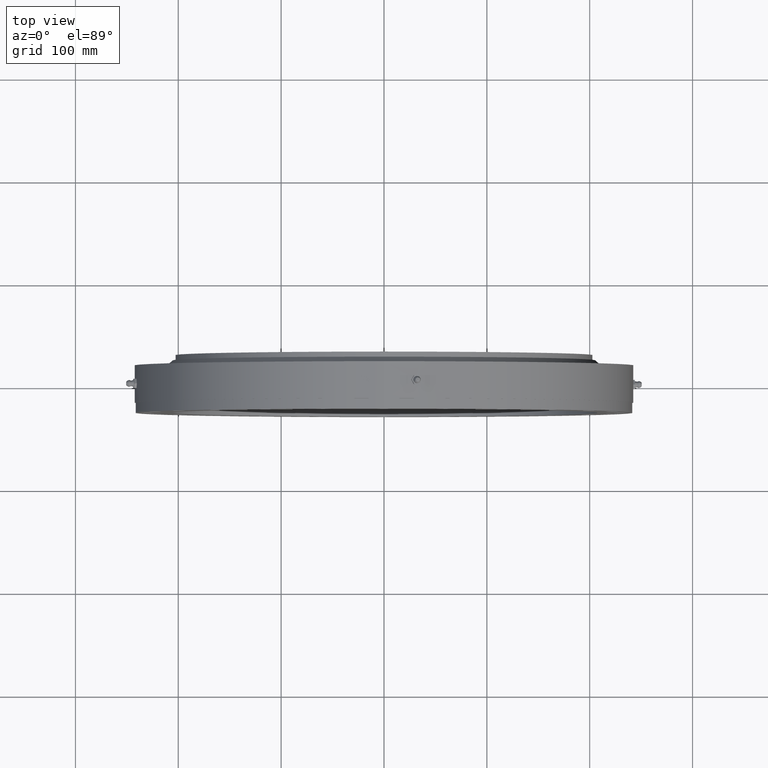
[diagram: clean part render]
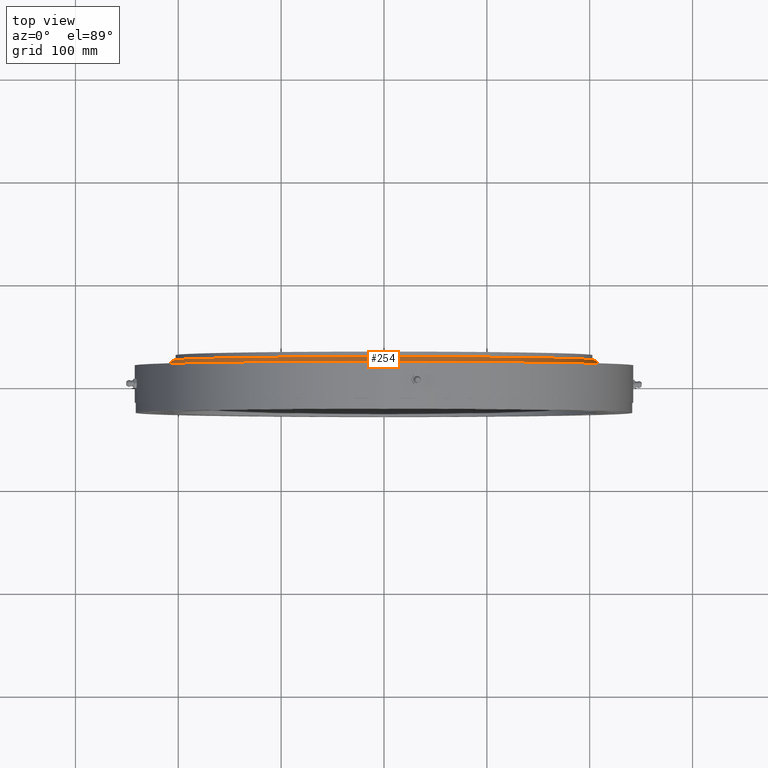
[diagram: same view with one face highlighted and labeled with its STEP entity id]
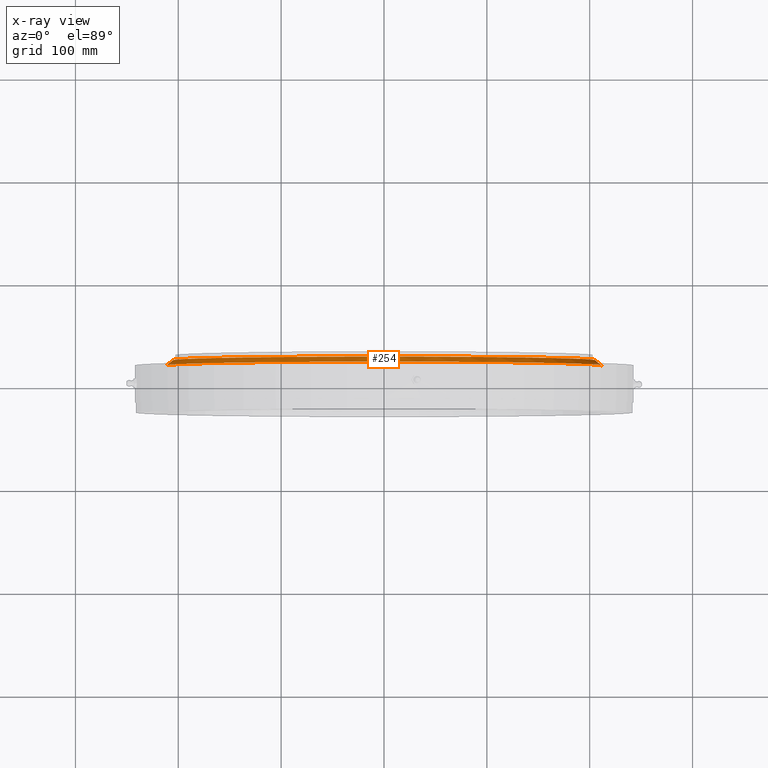
[diagram: x-ray of the same camera — body ghosted, the highlighted face saturated]
A machine part, top view. The second image highlights one B-rep face of the part: STEP entity #254.
The next image is the same camera in x-ray: the body ghosted, the highlighted face saturated — about 1% of this face is hidden behind the body in this view.
In plain terms, the highlighted conical surface has half-angle 49.914 deg.
Its self-contained STEP definition (entity closure, byte-faithful):
#254 = ADVANCED_FACE ( 'NONE', ( #4497 ), #6027, .T. ) ;
#389 = VERTEX_POINT ( 'NONE', #5437 ) ;
#483 = VERTEX_POINT ( 'NONE', #4991 ) ;
#755 = CIRCLE ( 'NONE', #7021, 205.2500000000000000 ) ;
#853 = ORIENTED_EDGE ( 'NONE', *, *, #4899, .F. ) ;
#1247 = DIRECTION ( 'NONE',  ( -1.836909530733565900E-016, -1.000000000000000000, 0.0000000000000000000 ) ) ;
#1300 = ORIENTED_EDGE ( 'NONE', *, *, #6782, .F. ) ;
#1311 = DIRECTION ( 'NONE',  ( 1.000000000000000000, -1.806575927644485600E-016, 0.0000000000000000000 ) ) ;
#1399 = AXIS2_PLACEMENT_3D ( 'NONE', #7285, #1247, #1311 ) ;
#1407 = VECTOR ( 'NONE', #6893, 999.9999999999998900 ) ;
#2284 = EDGE_CURVE ( 'NONE', #483, #6206, #7578, .T. ) ;
#2409 = CARTESIAN_POINT ( 'NONE',  ( 205.2500000000000000, 23.04999999999995800, 0.0000000000000000000 ) ) ;
#2527 = DIRECTION ( 'NONE',  ( -1.000000000000000000, 1.806575927644485600E-016, 0.0000000000000000000 ) ) ;
#2599 = DIRECTION ( 'NONE',  ( 1.836909530733565900E-016, 1.000000000000000000, -0.0000000000000000000 ) ) ;
#2818 = CARTESIAN_POINT ( 'NONE',  ( -211.2500000000000000, 18.00000000000000000, 2.587066363198783500E-014 ) ) ;
#2848 = DIRECTION ( 'NONE',  ( -0.7650765054985549900, -0.6439393921279544800, 9.369484935616476500E-017 ) ) ;
#3060 = CARTESIAN_POINT ( 'NONE',  ( 211.2500000000000000, 17.99999999999992200, 0.0000000000000000000 ) ) ;
#3086 = EDGE_LOOP ( 'NONE', ( #853, #7151, #6531, #1300 ) ) ;
#3465 = VECTOR ( 'NONE', #2848, 1000.000000000000000 ) ;
#3836 = DIRECTION ( 'NONE',  ( 1.836909530733565900E-016, 1.000000000000000000, -0.0000000000000000000 ) ) ;
#3869 = DIRECTION ( 'NONE',  ( -1.000000000000000000, 1.859386917003154900E-016, 0.0000000000000000000 ) ) ;
#4385 = CARTESIAN_POINT ( 'NONE',  ( -2.489123338632561600E-015, 17.99999999999996100, 0.0000000000000000000 ) ) ;
#4497 = FACE_OUTER_BOUND ( 'NONE', #3086, .T. ) ;
#4899 = EDGE_CURVE ( 'NONE', #483, #6841, #755, .T. ) ;
#4991 = CARTESIAN_POINT ( 'NONE',  ( -205.2500000000000000, 23.05000000000003600, 2.550326959224362900E-014 ) ) ;
#5099 = EDGE_CURVE ( 'NONE', #6206, #389, #6232, .T. ) ;
#5202 = CARTESIAN_POINT ( 'NONE',  ( -211.2500000000000000, 18.00000000000000000, 2.587066363198783800E-014 ) ) ;
#5437 = CARTESIAN_POINT ( 'NONE',  ( 211.2500000000000000, 17.99999999999992200, 0.0000000000000000000 ) ) ;
#6027 = CONICAL_SURFACE ( 'NONE', #1399, 211.2500000000000000, 0.8711601305813067000 ) ;
#6206 = VERTEX_POINT ( 'NONE', #5202 ) ;
#6232 = CIRCLE ( 'NONE', #8353, 211.2500000000000000 ) ;
#6531 = ORIENTED_EDGE ( 'NONE', *, *, #5099, .T. ) ;
#6598 = LINE ( 'NONE', #3060, #1407 ) ;
#6782 = EDGE_CURVE ( 'NONE', #6841, #389, #6598, .T. ) ;
#6841 = VERTEX_POINT ( 'NONE', #2409 ) ;
#6893 = DIRECTION ( 'NONE',  ( 0.7650765054985548800, -0.6439393921279547000, 0.0000000000000000000 ) ) ;
#7021 = AXIS2_PLACEMENT_3D ( 'NONE', #8044, #2599, #3869 ) ;
#7151 = ORIENTED_EDGE ( 'NONE', *, *, #2284, .T. ) ;
#7285 = CARTESIAN_POINT ( 'NONE',  ( -2.489123338632561600E-015, 17.99999999999996100, 0.0000000000000000000 ) ) ;
#7578 = LINE ( 'NONE', #2818, #3465 ) ;
#8044 = CARTESIAN_POINT ( 'NONE',  ( -1.561484025612103900E-015, 23.04999999999999700, 0.0000000000000000000 ) ) ;
#8353 = AXIS2_PLACEMENT_3D ( 'NONE', #4385, #3836, #2527 ) ;